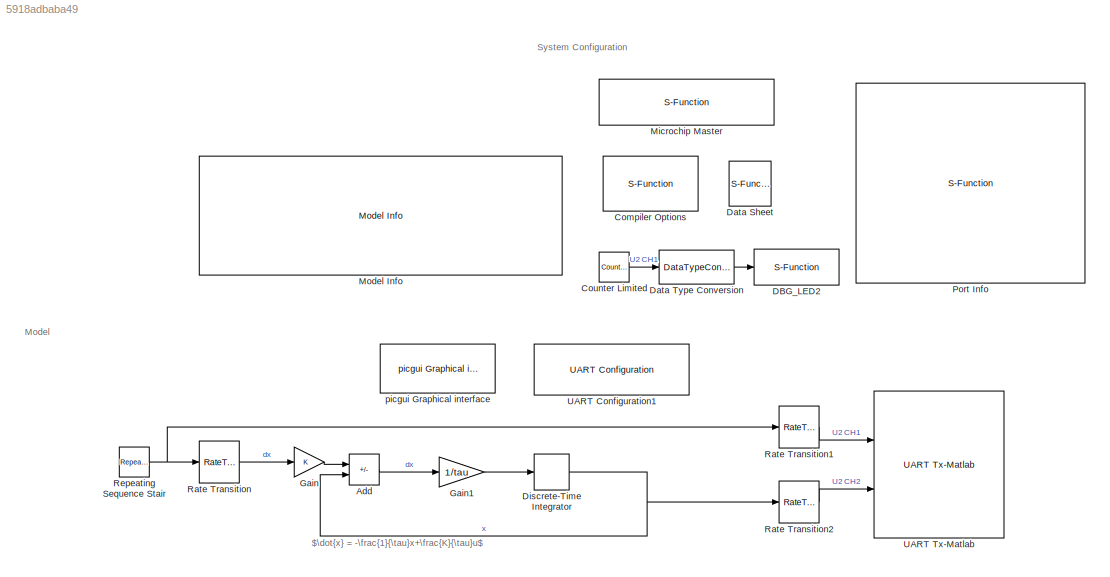
MODEL slx_5918adbaba49
KIND model
CONFIG AbsTol = auto
CONFIG EnableMultiTasking = on
CONFIG FixedStep = Ts
CONFIG InitFcn = % Sampling time\nTs = 1e-4;\n\n\n% Model Parameters\nK = 1;\ntau = 0.1;\n
CONFIG MaxStep = auto
CONFIG MinStep = auto
CONFIG RelTol = 1e-3
CONFIG SampleTimeConstraint = Unconstrained
CONFIG SolverName = FixedStepDiscrete
CONFIG StartTime = 0.0
CONFIG StopTime = 10.0
BLOCK [Sum] Add
  IconShape = rectangular
  Inputs = +-
  Ports = [2, 1]
BLOCK [S-Function] Compiler Options
  EnableBusSupport = off
  FunctionName = MCHP_EmptySFunction
  OpenFcn = MCHP_CompilerOptimisation_Callback(gcbh, 'OPEN');
  Ports = []
  PreSaveFcn = MCHP_Fun.PreSaveFcn_DynamicOptions(gcbh);
  Priority = 1
  SFcnIsStateOwnerBlock = off
  SFunctionDeploymentMode = off
BLOCK [Reference] Counter Limited  REF=simulink/Sources/Counter
Limited
  Ports = [0, 1]
  SourceBlock = simulink/Sources/Counter\nLimited
  SourceProductBaseCode = SL
  SourceType = Counter Limited
BLOCK [S-Function] DBG_LED2
  EnableBusSupport = off
  FunctionName = MCHP_Digital_Output_Write
  OpenFcn = MCHP_Digital_Output_Write_Callback(gcb,'OPEN');
  Parameters = SampleTime,MCHP_Digital_Output_Write_Callback(gcb,'S_INPUT'),MCHP_Digital_Output_Write_Callback(gcb,'S_OUTPUT'),MCHP_OrderInOut(gcbh)
  Ports = [1]
  PreSaveFcn = MCHP_Fun.PreSaveFcn_DynamicOptions(gcbh);
  SFcnIsStateOwnerBlock = off
  SFunctionDeploymentMode = off
BLOCK [S-Function] Data Sheet
  AttributesFormatString = %<cpy_MCHP_Id>
  CopyFcn = MCHP_Doc_Callback(gcb,'COPY');
  EnableBusSupport = off
  FunctionName = MCHP_EmptySFunction
  OpenFcn = MCHP_Doc_Callback(gcb,'OPEN');
  Ports = []
  SFcnIsStateOwnerBlock = off
  SFunctionDeploymentMode = off
BLOCK [DataTypeConversion] Data Type Conversion
  OutDataTypeStr = boolean
  RndMeth = Floor
  SaturateOnIntegerOverflow = off
BLOCK [DiscreteIntegrator] Discrete-Time Integrator
  ICPrevOutput = DiscIntNeverNeededParam
  ICPrevScaledInput = DiscIntNeverNeededParam
  InitialConditionSetting = Auto
  LowerSaturationLimit = -100
  OutDataTypeStr = single
  Ports = [1, 1]
  SampleTime = 1e-4
  UpperSaturationLimit = 100
BLOCK [Gain] Gain
  Gain = K
BLOCK [Gain] Gain1
  Gain = 1/tau
BLOCK [S-Function] Microchip Master
  EnableBusSupport = off
  FunctionName = MCHP_Master
  InitFcn = MCHP_Master_Callback(gcbh,'INIT');
  OpenFcn = MCHP_Master_Callback(gcbh,'OPEN');
  Ports = []
  PreSaveFcn = MCHP_Fun.PreSaveFcn_DynamicOptions(gcbh);
  Priority = 1
  SFcnIsStateOwnerBlock = off
  SFunctionDeploymentMode = off
BLOCK [Reference] Model Info  REF=simulink/Model-Wide
Utilities/Model Info
  Ports = []
  SourceBlock = simulink/Model-Wide\nUtilities/Model Info
  SourceProductBaseCode = SL
  SourceType = CMBlock
BLOCK [S-Function] Port Info
  CopyFcn = MCHP_PortInfo_Callback(gcb,'COPY');
  EnableBusSupport = off
  FunctionName = MCHP_EmptySFunction
  OpenFcn = MCHP_PortInfo_Callback(gcb,'OPEN');
  Ports = []
  SFcnIsStateOwnerBlock = off
  SFunctionDeploymentMode = off
BLOCK [RateTransition] Rate Transition
BLOCK [RateTransition] Rate Transition1
BLOCK [RateTransition] Rate Transition2
BLOCK [Reference] Repeating Sequence Stair  REF=simulink/Sources/Repeating
Sequence
Stair
  Ports = [0, 1]
  SourceBlock = simulink/Sources/Repeating\nSequence\nStair
  SourceProductBaseCode = SL
  SourceType = Repeating Sequence Stair
BLOCK [Reference] UART Configuration1  REF=MCHP_Blockset/BUS UART/UART Configuration
  Ports = []
  SourceBlock = MCHP_Blockset/BUS UART/UART Configuration
  SourceProductName = MPLAB Device Blocks for Simulink
  SourceType = Configuration for UART peripheral
BLOCK [Reference] UART Tx-Matlab  REF=MCHP_Blockset/BUS UART/UART Tx-Matlab
  Ports = [2]
  SourceBlock = MCHP_Blockset/BUS UART/UART Tx-Matlab
  SourceProductName = MPLAB Device Blocks for Simulink
  SourceType = Higl Level UART protocol
BLOCK [Reference] picgui Graphical interface  REF=MCHP_Blockset/BUS UART/picgui
Graphical interface
  Ports = []
  SourceBlock = MCHP_Blockset/BUS UART/picgui\nGraphical interface
  SourceProductName = MPLAB Device Blocks for Simulink
ANNOTATION (root): $\dot{x} = -\frac{1}{\tau}x+\frac{K}{\tau}u$
ANNOTATION (root): Model
ANNOTATION (root): System Configuration
LINE Add:1 -> Gain1:1
LINE Counter Limited:1 -> Data Type Conversion:1
LINE Data Type Conversion:1 -> DBG_LED2:1
NET Discrete-Time Integrator:1 -> Add:2, Rate Transition2:1
LINE Gain1:1 -> Discrete-Time Integrator:1
LINE Gain:1 -> Add:1
LINE Rate Transition1:1 -> UART Tx-Matlab:1
LINE Rate Transition2:1 -> UART Tx-Matlab:2
LINE Rate Transition:1 -> Gain:1
NET Repeating Sequence Stair:1 -> Rate Transition1:1, Rate Transition:1
note: NET lines group one-source signal fan-out (src -> all destinations, sorted); 1:1 wires keep LINE
